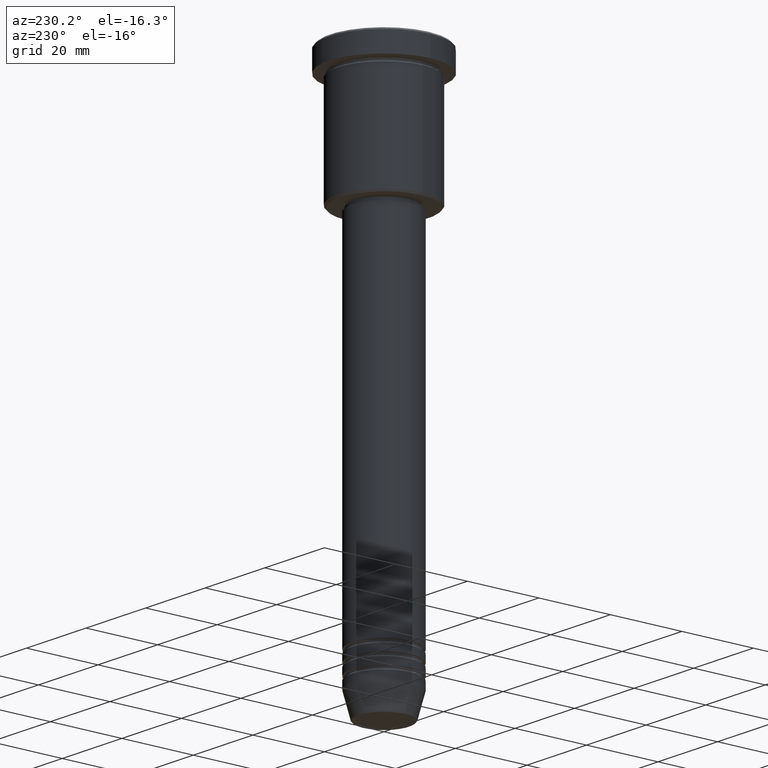
[diagram: clean part render]
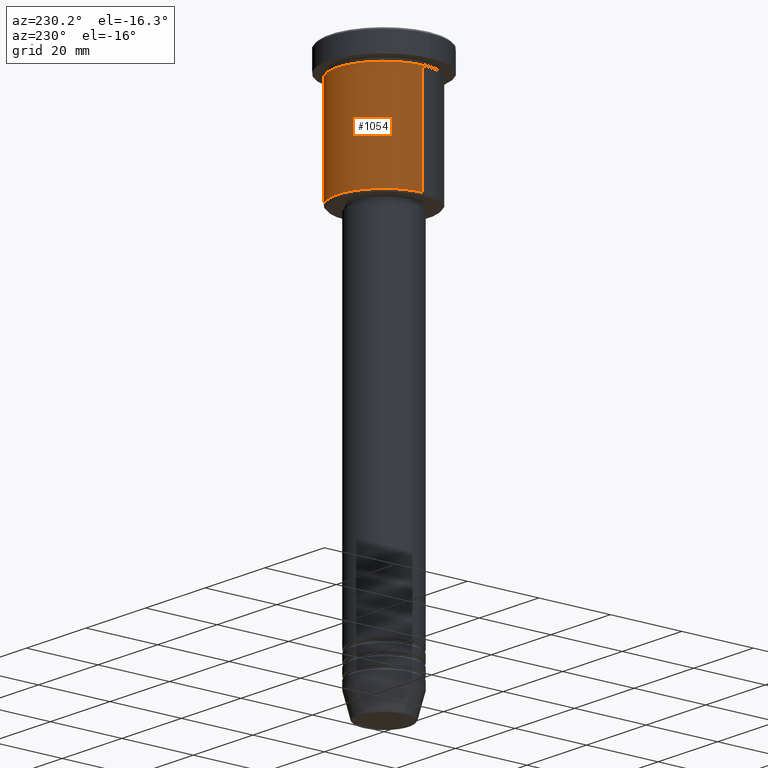
[diagram: same view with one face highlighted and labeled with its STEP entity id]
A machine part, auxiliary view. The second image highlights one B-rep face of the part: STEP entity #1054.
In plain terms, the highlighted cylindrical surface (partial cylindrical patch) has radius 13 mm, axis along (-0, -0, 1).
Its self-contained STEP definition (entity closure, byte-faithful):
#38 = VERTEX_POINT ( 'NONE', #729 ) ;
#40 = VERTEX_POINT ( 'NONE', #271 ) ;
#42 = EDGE_LOOP ( 'NONE', ( #555, #890, #1145, #270 ) ) ;
#118 = CARTESIAN_POINT ( 'NONE',  ( 0.000000000000000000, 0.000000000000000000, -35.50000000000001421 ) ) ;
#131 = CIRCLE ( 'NONE', #412, 13.00000000000000000 ) ;
#191 = EDGE_CURVE ( 'NONE', #38, #40, #1134, .T. ) ;
#198 = DIRECTION ( 'NONE',  ( -0.000000000000000000, -0.000000000000000000, 1.000000000000000000 ) ) ;
#270 = ORIENTED_EDGE ( 'NONE', *, *, #191, .F. ) ;
#271 = CARTESIAN_POINT ( 'NONE',  ( 13.00000000000000000, 0.000000000000000000, -6.999999999999995559 ) ) ;
#282 = VECTOR ( 'NONE', #740, 1000.000000000000000 ) ;
#284 = CARTESIAN_POINT ( 'NONE',  ( -13.00000000000000000, 1.592040838891559095E-15, -6.999999999999995559 ) ) ;
#287 = CARTESIAN_POINT ( 'NONE',  ( -13.00000000000000000, 1.592040838891559095E-15, -35.50000000000001421 ) ) ;
#292 = DIRECTION ( 'NONE',  ( -0.000000000000000000, -0.000000000000000000, 1.000000000000000000 ) ) ;
#305 = LINE ( 'NONE', #310, #282 ) ;
#310 = CARTESIAN_POINT ( 'NONE',  ( -13.00000000000000000, 1.592040838891559095E-15, 0.000000000000000000 ) ) ;
#367 = CARTESIAN_POINT ( 'NONE',  ( 0.000000000000000000, 0.000000000000000000, 0.000000000000000000 ) ) ;
#412 = AXIS2_PLACEMENT_3D ( 'NONE', #720, #738, #1010 ) ;
#427 = EDGE_CURVE ( 'NONE', #40, #481, #131, .T. ) ;
#430 = AXIS2_PLACEMENT_3D ( 'NONE', #118, #809, #1172 ) ;
#460 = VERTEX_POINT ( 'NONE', #287 ) ;
#481 = VERTEX_POINT ( 'NONE', #284 ) ;
#525 = EDGE_CURVE ( 'NONE', #38, #460, #946, .T. ) ;
#546 = EDGE_CURVE ( 'NONE', #460, #481, #305, .T. ) ;
#555 = ORIENTED_EDGE ( 'NONE', *, *, #525, .T. ) ;
#569 = CARTESIAN_POINT ( 'NONE',  ( 13.00000000000000000, 0.000000000000000000, 0.000000000000000000 ) ) ;
#622 = DIRECTION ( 'NONE',  ( 1.000000000000000000, 0.000000000000000000, 0.000000000000000000 ) ) ;
#720 = CARTESIAN_POINT ( 'NONE',  ( 0.000000000000000000, 0.000000000000000000, -6.999999999999995559 ) ) ;
#729 = CARTESIAN_POINT ( 'NONE',  ( 13.00000000000000000, 0.000000000000000000, -35.50000000000001421 ) ) ;
#738 = DIRECTION ( 'NONE',  ( -0.000000000000000000, -0.000000000000000000, 1.000000000000000000 ) ) ;
#740 = DIRECTION ( 'NONE',  ( -0.000000000000000000, -0.000000000000000000, 1.000000000000000000 ) ) ;
#809 = DIRECTION ( 'NONE',  ( -0.000000000000000000, -0.000000000000000000, 1.000000000000000000 ) ) ;
#830 = CYLINDRICAL_SURFACE ( 'NONE', #893, 13.00000000000000000 ) ;
#846 = VECTOR ( 'NONE', #292, 1000.000000000000000 ) ;
#890 = ORIENTED_EDGE ( 'NONE', *, *, #546, .T. ) ;
#893 = AXIS2_PLACEMENT_3D ( 'NONE', #367, #198, #622 ) ;
#946 = CIRCLE ( 'NONE', #430, 13.00000000000000000 ) ;
#1010 = DIRECTION ( 'NONE',  ( 1.000000000000000000, 0.000000000000000000, 0.000000000000000000 ) ) ;
#1012 = FACE_OUTER_BOUND ( 'NONE', #42, .T. ) ;
#1054 = ADVANCED_FACE ( 'NONE', ( #1012 ), #830, .T. ) ;
#1134 = LINE ( 'NONE', #569, #846 ) ;
#1145 = ORIENTED_EDGE ( 'NONE', *, *, #427, .F. ) ;
#1172 = DIRECTION ( 'NONE',  ( -1.000000000000000000, 0.000000000000000000, 0.000000000000000000 ) ) ;